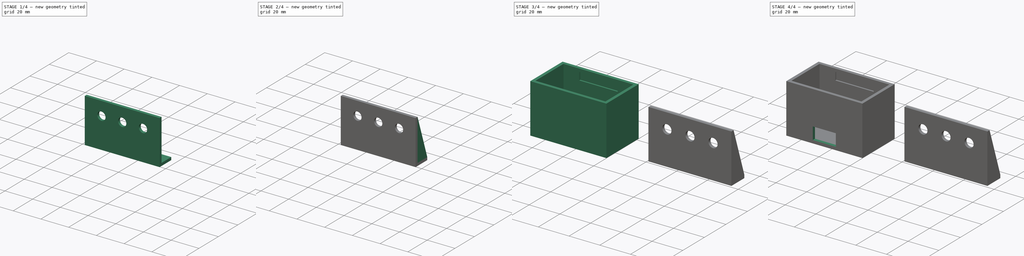
[diagram: build sequence overview — one tinted view per stage of 4, left to right]
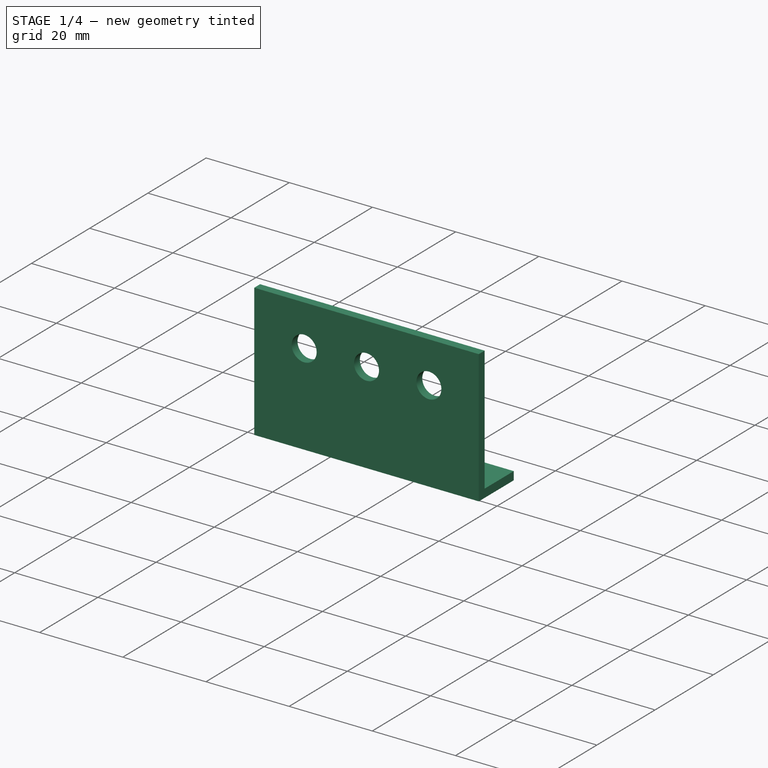
[diagram: stage 1 of 4 — iso view after this stage's code; geometry added in this stage tinted green]
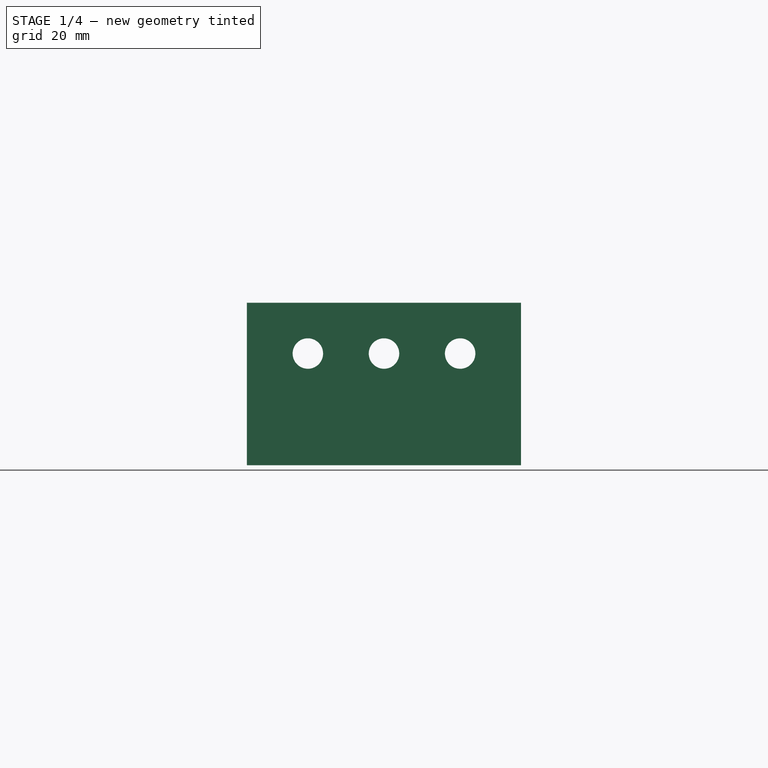
[diagram: stage 1 of 4 — front view after this stage's code; geometry added in this stage tinted green]
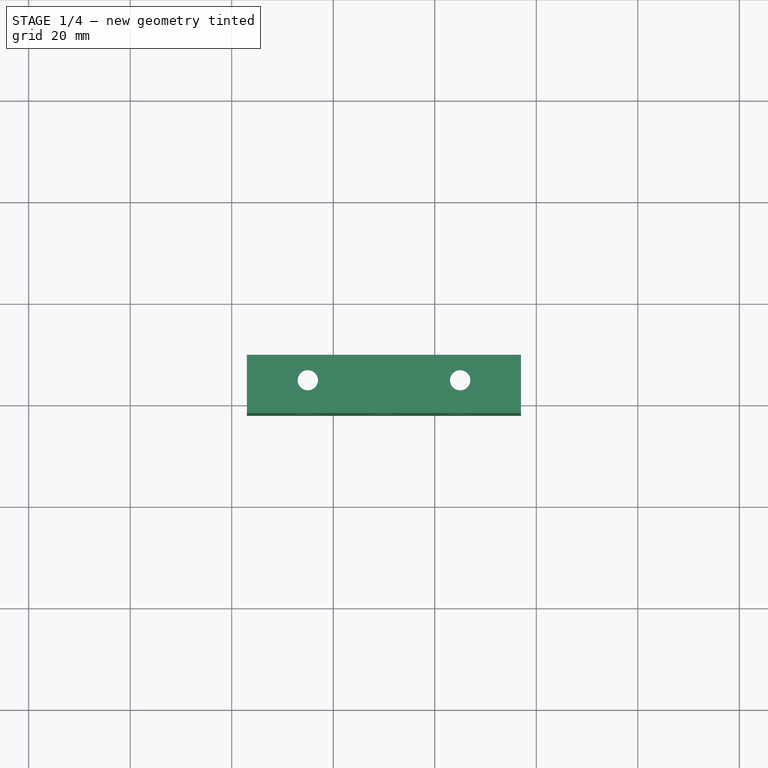
[diagram: stage 1 of 4 — top view after this stage's code; geometry added in this stage tinted green]
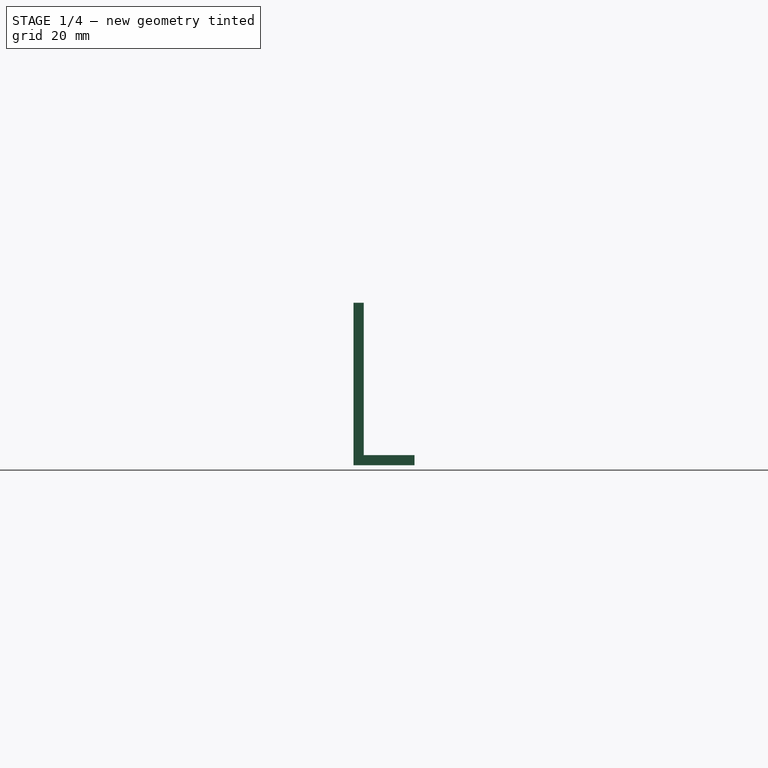
[diagram: stage 1 of 4 — right view after this stage's code; geometry added in this stage tinted green]
FCSTD DOCUMENT  (FreeCAD 0.19R24291 (Git))
Label: enclosure2
License: All rights reserved
LicenseURL: http://en.wikipedia.org/wiki/All_rights_reserved
objects: Sketcher::SketchObject×7, PartDesign::Pad×5, PartDesign::Pocket×2, PartDesign::Body×2, PartDesign::Mirrored×1, PartDesign::Chamfer×1
note: 26 computed .brp shape members not serialized (recipe doc carries the construction recipe); baked Part::Feature solids carry a one-line shape summary decoded from their .brp

FEATURE [PartDesign::Body] Body  label="Body: voltmeter enclosure"
  Group = -> [Sketch,Pad,Sketch001,Pad001,Sketch002,Pocket,Mirrored,Sketch003,Pocket001]
  Origin = -> Origin
  Tip = -> Pocket001
FEATURE [Sketcher::SketchObject] Sketch004
  FullyConstrained = true
  MapMode = 5
  Placement = pos=(0,0,0) rot=(1,0,0;1.5708rad)
  Support = -> [XZ_Plane001]
  sketch-geometry (13):
    g0: LineSegment StartX=43 StartY=30 StartZ=0 EndX=97 EndY=30 EndZ=0
    g1: LineSegment StartX=97 StartY=30 StartZ=0 EndX=97 EndY=0 EndZ=0
    g2: LineSegment StartX=97 StartY=0 StartZ=0 EndX=43 EndY=0 EndZ=0
    g3: LineSegment StartX=43 StartY=0 StartZ=0 EndX=43 EndY=30 EndZ=0
    g4: Circle CenterX=55 CenterY=20 CenterZ=0 NormalX=0 NormalY=0 NormalZ=1 AngleXU=0 Radius=3
    g5: Circle CenterX=70 CenterY=20 CenterZ=0 NormalX=0 NormalY=0 NormalZ=1 AngleXU=0 Radius=3
    g6: Circle CenterX=85 CenterY=20 CenterZ=0 NormalX=0 NormalY=0 NormalZ=1 AngleXU=0 Radius=3
    g7: LineSegment StartX=55 StartY=20 StartZ=0 EndX=70 EndY=20 EndZ=0
    g8: LineSegment StartX=70 StartY=20 StartZ=0 EndX=85 EndY=20 EndZ=0
    g9: LineSegment StartX=85 StartY=20 StartZ=0 EndX=97 EndY=20 EndZ=0
    g10: LineSegment StartX=55 StartY=20 StartZ=0 EndX=43 EndY=20 EndZ=0
    g11: LineSegment StartX=70 StartY=20 StartZ=0 EndX=70 EndY=0 EndZ=0
    g12: LineSegment StartX=70 StartY=20 StartZ=0 EndX=70 EndY=30 EndZ=0
  constraints (37):
    c: Coincident(g0,g1)
    c: Coincident(g1,g2)
    c: Coincident(g2,g3)
    c: Coincident(g3,g0)
    c: Horizontal(g0)
    c: Horizontal(g2)
    c: Vertical(g1)
    c: Vertical(g3)
    c: PointOnObject(g1,g-1)
    c: Equal(g6,g5)
    c: Equal(g5,g4)
    c: Coincident(g7,g4)
    c: Coincident(g7,g5)
    c: Horizontal(g7)
    c: Coincident(g8,g5)
    c: Coincident(g8,g6)
    c: Horizontal(g8)
    c: Coincident(g9,g6)
    c: PointOnObject(g9,g1)
    c: Horizontal(g9)
    c: Coincident(g10,g4)
    c: PointOnObject(g10,g3)
    c: Horizontal(g10)
    c: Distance(g7) = 15  'hole center distance'
    c: Equal(g7,g8)
    c: Distance(g10) = 12  'hole center to side edge distance'
    c: Equal(g10,g9)
    c: Coincident(g11,g5)
    c: PointOnObject(g11,g2)
    c: Vertical(g11)
    c: Coincident(g12,g5)
    c: PointOnObject(g12,g0)
    c: Vertical(g12)
    c: Distance(g11) = 20  'hole center to bottom distance'
    c: Distance(g12) = 10  'hole center to top distance'
    c: Diameter(g4) = 6  'hole diameter'
    c: Distance(g-1,g11) = 70
FEATURE [PartDesign::Pad] Pad002  label="Pad: side plate"
  Direction = (1,1,1)
  Length = 2
  Length2 = 100
  Placement = pos=(0,0,0) rot=(1,0,0;1.5708rad)
  Profile = -> Sketch004
  Type = 0
FEATURE [Sketcher::SketchObject] Sketch005
  ExternalGeometry = -> [Pad002]
  FullyConstrained = true
  MapMode = 5
  Placement = pos=(0,0,0) rot=(1,0,0;3.14159rad)
  Support = -> [Pad002]
  sketch-geometry (10):
    g0: LineSegment StartX=43 StartY=-10 StartZ=0 EndX=97 EndY=-10 EndZ=0
    g1: LineSegment StartX=43 StartY=2 StartZ=0 EndX=43 EndY=0 EndZ=0
    g2: LineSegment StartX=97 StartY=2 StartZ=0 EndX=97 EndY=0 EndZ=0
    g3: LineSegment StartX=43 StartY=0 StartZ=0 EndX=43 EndY=-10 EndZ=0
    g4: LineSegment StartX=97 StartY=0 StartZ=0 EndX=97 EndY=-10 EndZ=0
    g5: Circle CenterX=55 CenterY=-5 CenterZ=0 NormalX=0 NormalY=0 NormalZ=1 AngleXU=0 Radius=2
    g6: Circle CenterX=85 CenterY=-5 CenterZ=0 NormalX=0 NormalY=0 NormalZ=1 AngleXU=0 Radius=2
    g7: LineSegment StartX=55 StartY=-5 StartZ=0 EndX=70 EndY=-5 EndZ=0
    g8: LineSegment StartX=70 StartY=-5 StartZ=0 EndX=85 EndY=-5 EndZ=0
    g9: LineSegment StartX=43 StartY=2 StartZ=0 EndX=97 EndY=2 EndZ=0
  constraints (26):
    c: Horizontal(g0)
    c: Coincident(g1,g-3)
    c: PointOnObject(g1,g-1)
    c: Coincident(g2,g-3)
    c: PointOnObject(g2,g-1)
    c: Coincident(g3,g1)
    c: Coincident(g3,g0)
    c: Vertical(g3)
    c: Coincident(g4,g2)
    c: Coincident(g4,g0)
    c: Vertical(g4)
    c: Distance(g3) = 10  'base depth'
    c: Vertical(g2)
    c: Vertical(g1)
    c: Diameter(g5) = 4  'mounting hole diameter'
    c: Equal(g5,g6)
    c: Coincident(g7,g5)
    c: Horizontal(g7)
    c: Coincident(g8,g7)
    c: Coincident(g8,g6)
    c: Horizontal(g8)
    c: Equal(g7,g8)
    c: Symmetric(g1,g0,g7)
    c: Distance(g8) = 15  'half mounting hole distance'
    c: Coincident(g9,g1)
    c: Coincident(g9,g2)
FEATURE [PartDesign::Pad] Pad003  label="Pad: bottom plate"
  BaseFeature = -> Pad002
  Direction = (1,1,1)
  Length = 2
  Length2 = 100
  Placement = pos=(0,0,0) rot=(1,0,0;1.5708rad)
  Profile = -> Sketch005
  Type = 0
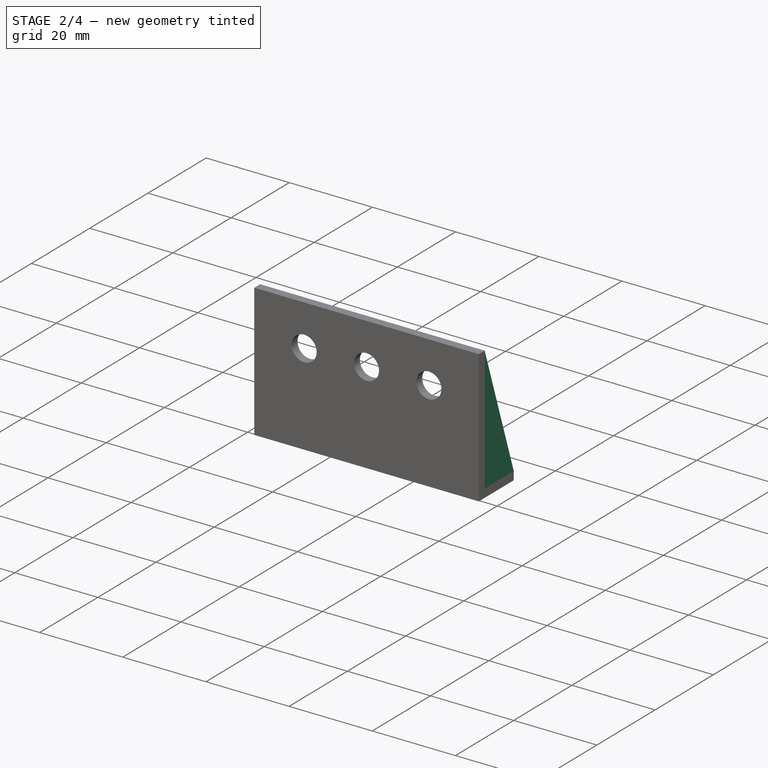
[diagram: stage 2 of 4 — iso view after this stage's code; geometry added in this stage tinted green]
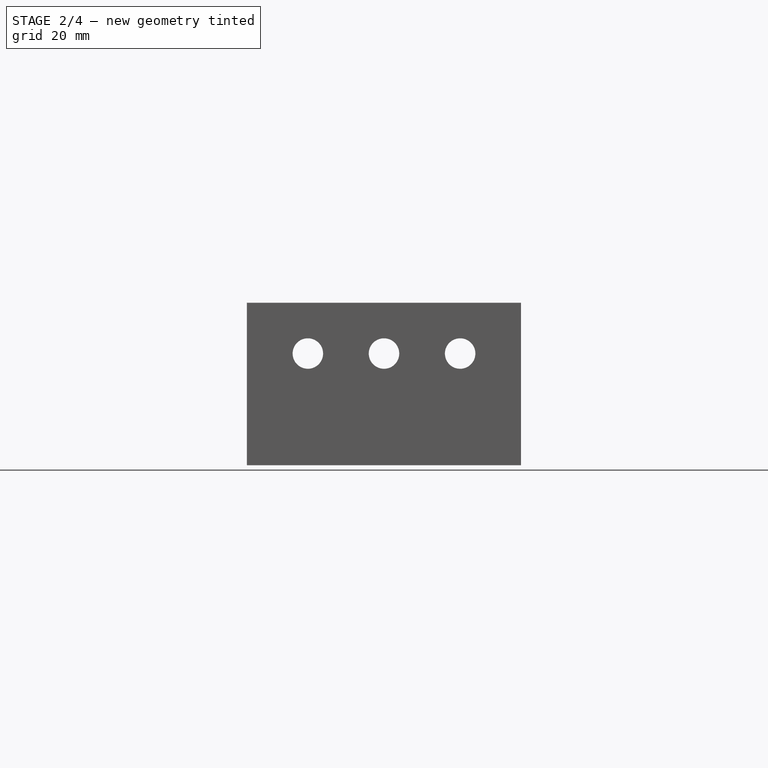
[diagram: stage 2 of 4 — front view after this stage's code; geometry added in this stage tinted green]
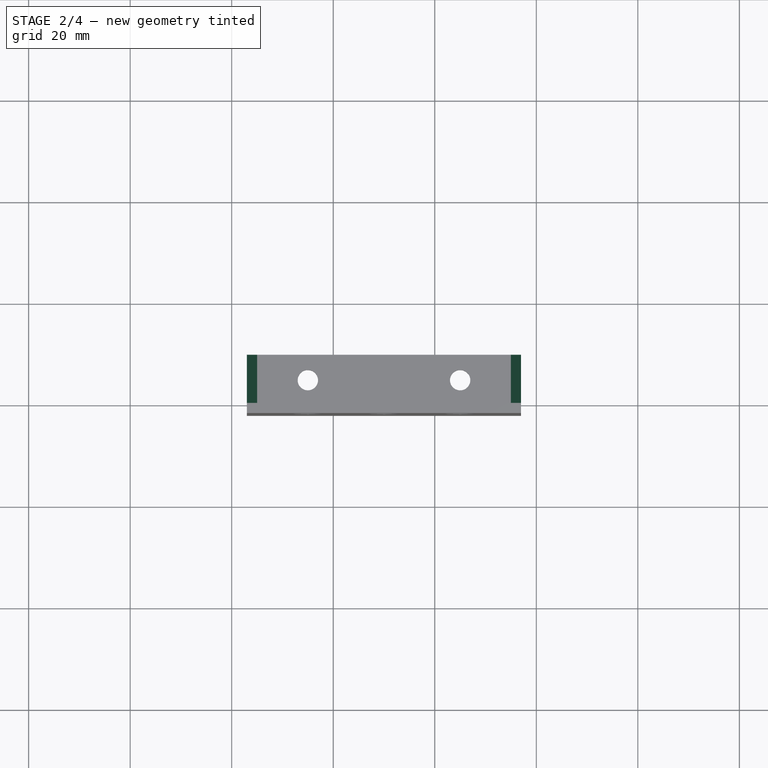
[diagram: stage 2 of 4 — top view after this stage's code; geometry added in this stage tinted green]
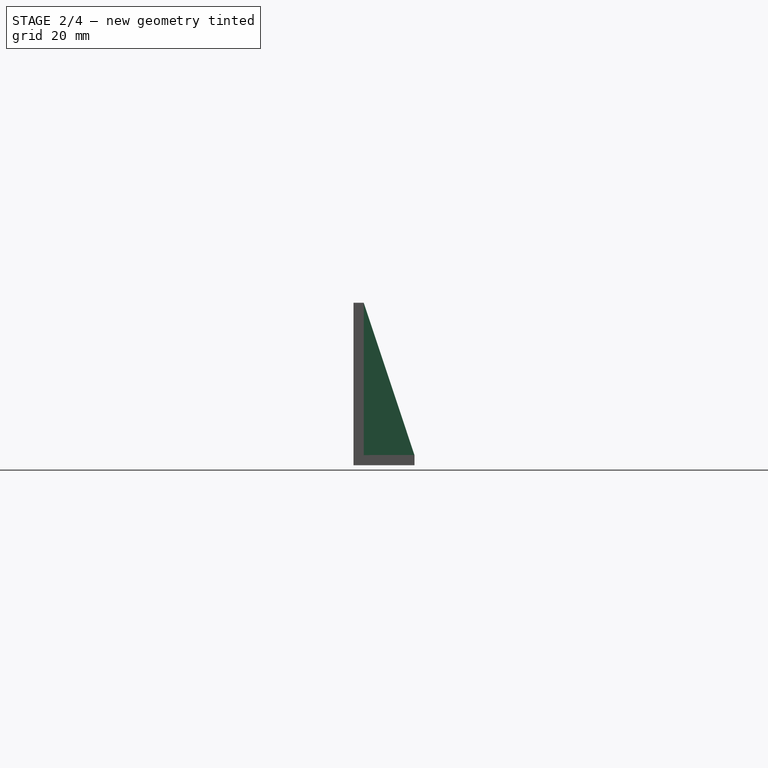
[diagram: stage 2 of 4 — right view after this stage's code; geometry added in this stage tinted green]
FEATURE [Sketcher::SketchObject] Sketch006
  ExternalGeometry = -> [Pad003]
  FullyConstrained = true
  MapMode = 5
  Placement = pos=(0,0,0) rot=(0,0,1;3.14159rad)
  Support = -> [Pad003]
  sketch-geometry (8):
    g0: LineSegment StartX=-97 StartY=0 StartZ=0 EndX=-95 EndY=0 EndZ=0
    g1: LineSegment StartX=-95 StartY=0 StartZ=0 EndX=-95 EndY=-10 EndZ=0
    g2: LineSegment StartX=-95 StartY=-10 StartZ=0 EndX=-97 EndY=-10 EndZ=0
    g3: LineSegment StartX=-97 StartY=-10 StartZ=0 EndX=-97 EndY=0 EndZ=0
    g4: LineSegment StartX=-43 StartY=0 StartZ=0 EndX=-45 EndY=0 EndZ=0
    g5: LineSegment StartX=-45 StartY=0 StartZ=0 EndX=-45 EndY=-10 EndZ=0
    g6: LineSegment StartX=-45 StartY=-10 StartZ=0 EndX=-43 EndY=-10 EndZ=0
    g7: LineSegment StartX=-43 StartY=-10 StartZ=0 EndX=-43 EndY=0 EndZ=0
  constraints (22):
    c: Coincident(g0,g1)
    c: Coincident(g1,g2)
    c: Coincident(g2,g3)
    c: Coincident(g3,g0)
    c: Horizontal(g0)
    c: Horizontal(g2)
    c: Vertical(g1)
    c: Vertical(g3)
    c: Coincident(g0,g-6)
    c: PointOnObject(g1,g-5)
    c: Coincident(g4,g5)
    c: Coincident(g5,g6)
    c: Coincident(g6,g7)
    c: Coincident(g7,g4)
    c: Horizontal(g4)
    c: Horizontal(g6)
    c: Vertical(g5)
    c: Vertical(g7)
    c: Coincident(g4,g-6)
    c: PointOnObject(g5,g-5)
    c: Distance(g2) = 2
    c: Equal(g2,g6)
FEATURE [PartDesign::Pad] Pad004  label="Pad: side supports"
  BaseFeature = -> Pad003
  Direction = (1,1,1)
  Length = 30
  Length2 = 100
  Placement = pos=(0,0,0) rot=(1,0,0;1.5708rad)
  Profile = -> Sketch006
  Type = 0
FEATURE [PartDesign::Chamfer] Chamfer
  Angle = 45
  Base = -> Pad004 [Edge23,Edge14]
  BaseFeature = -> Pad004
  ChamferType = 1
  FlipDirection = false
  Placement = pos=(0,0,0) rot=(1,0,0;1.5708rad)
  Size = 9.99
  Size2 = 29.99
  SupportTransform = false
FEATURE [PartDesign::Body] Body001  label="Body: switch holder"
  Group = -> [Sketch004,Pad002,Sketch005,Pad003,Sketch006,Pad004,Chamfer]
  Origin = -> Origin001
  Tip = -> Chamfer
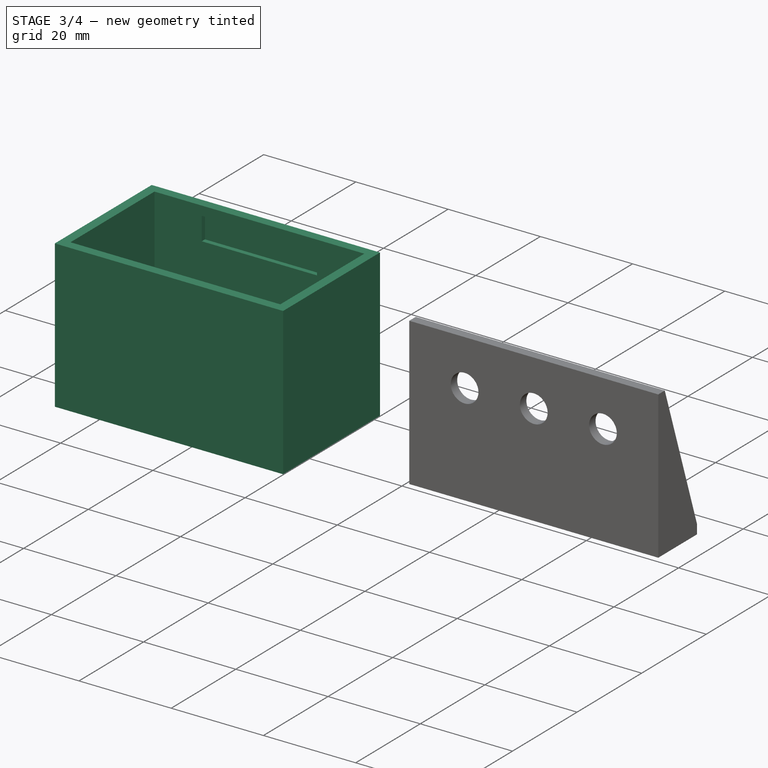
[diagram: stage 3 of 4 — iso view after this stage's code; geometry added in this stage tinted green]
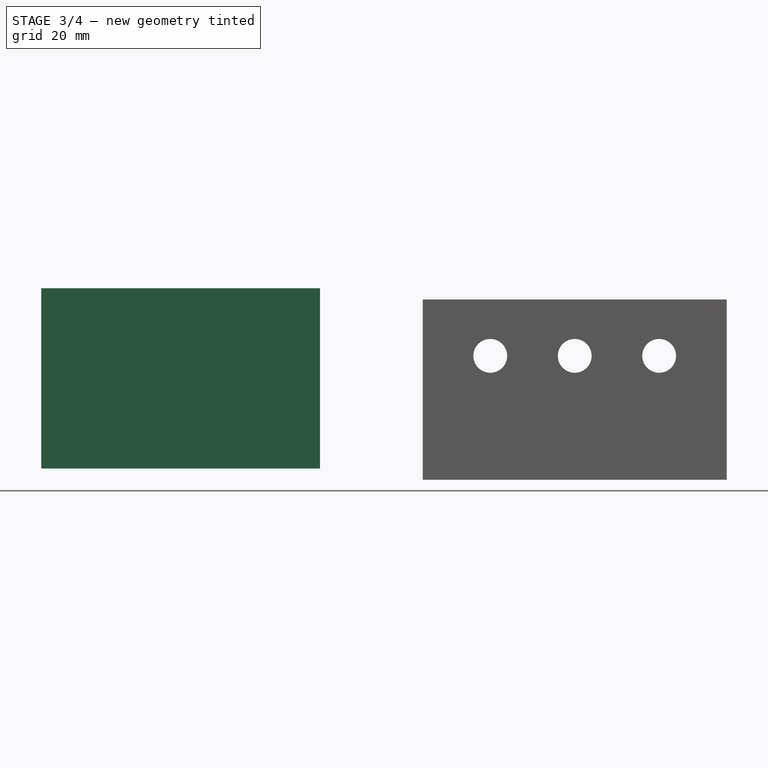
[diagram: stage 3 of 4 — front view after this stage's code; geometry added in this stage tinted green]
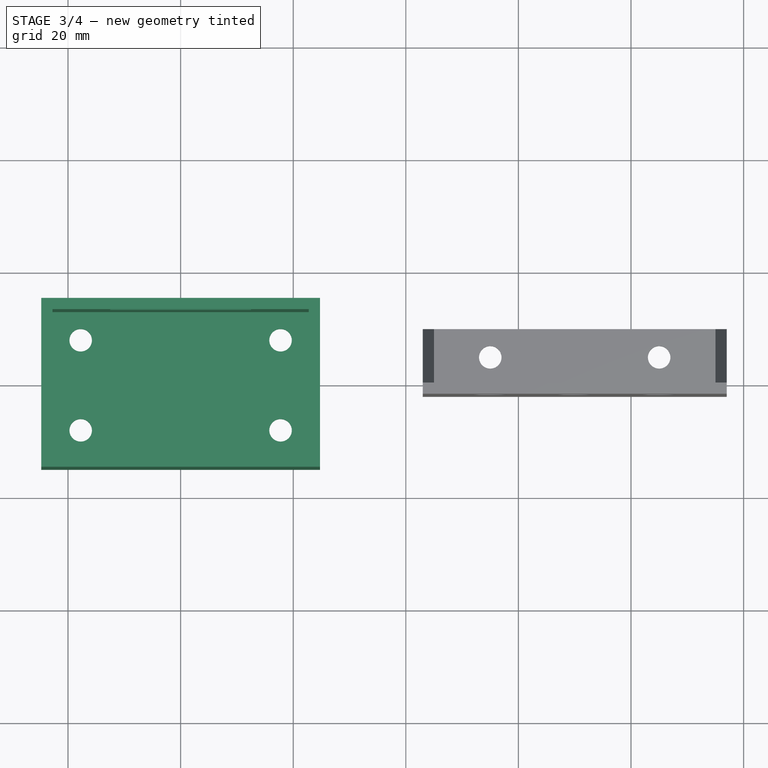
[diagram: stage 3 of 4 — top view after this stage's code; geometry added in this stage tinted green]
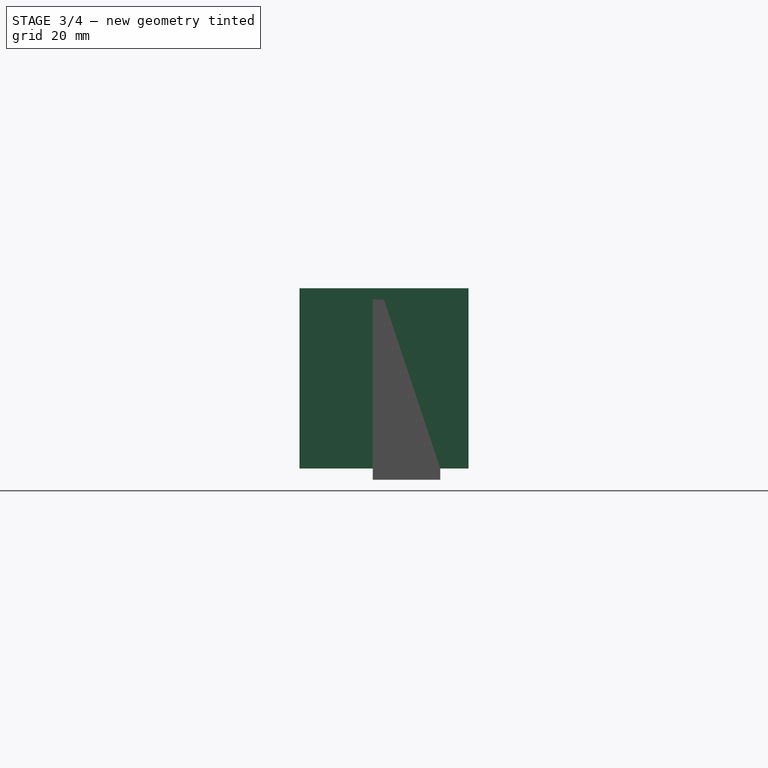
[diagram: stage 3 of 4 — right view after this stage's code; geometry added in this stage tinted green]
FEATURE [Sketcher::SketchObject] Sketch
  FullyConstrained = true
  MapMode = 5
  Support = -> [XY_Plane]
  sketch-geometry (16):
    g0: LineSegment StartX=-24.75 StartY=15 StartZ=0 EndX=24.75 EndY=15 EndZ=0
    g1: LineSegment StartX=24.75 StartY=15 StartZ=0 EndX=24.75 EndY=-15 EndZ=0
    g2: LineSegment StartX=24.75 StartY=-15 StartZ=0 EndX=-24.75 EndY=-15 EndZ=0
    g3: LineSegment StartX=-24.75 StartY=-15 StartZ=0 EndX=-24.75 EndY=15 EndZ=0
    g4: Circle CenterX=-17.75 CenterY=8 CenterZ=0 NormalX=0 NormalY=0 NormalZ=1 AngleXU=0 Radius=2
    g5: Circle CenterX=17.75 CenterY=8 CenterZ=0 NormalX=0 NormalY=0 NormalZ=1 AngleXU=0 Radius=2
    g6: Circle CenterX=-17.75 CenterY=-8 CenterZ=0 NormalX=0 NormalY=0 NormalZ=1 AngleXU=0 Radius=2
    g7: Circle CenterX=17.75 CenterY=-8 CenterZ=0 NormalX=0 NormalY=0 NormalZ=1 AngleXU=0 Radius=2
    g8: LineSegment StartX=-22.75 StartY=13 StartZ=0 EndX=22.75 EndY=13 EndZ=0
    g9: LineSegment StartX=22.75 StartY=13 StartZ=0 EndX=22.75 EndY=-13 EndZ=0
    g10: LineSegment StartX=22.75 StartY=-13 StartZ=0 EndX=-22.75 EndY=-13 EndZ=0
    g11: LineSegment StartX=-22.75 StartY=-13 StartZ=0 EndX=-22.75 EndY=13 EndZ=0
    g12: LineSegment StartX=22.75 StartY=13 StartZ=0 EndX=24.75 EndY=13 EndZ=0
    g13: LineSegment StartX=22.75 StartY=13 StartZ=0 EndX=22.75 EndY=15 EndZ=0
    g14: LineSegment StartX=-17.75 StartY=8 StartZ=0 EndX=-22.75 EndY=8 EndZ=0
    g15: LineSegment StartX=-17.75 StartY=8 StartZ=0 EndX=-17.75 EndY=13 EndZ=0
  constraints (43):
    c: Coincident(g0,g1)
    c: Coincident(g1,g2)
    c: Coincident(g2,g3)
    c: Coincident(g3,g0)
    c: Horizontal(g0)
    c: Horizontal(g2)
    c: Vertical(g1)
    c: Vertical(g3)
    c: Symmetric(g0,g1,g-1)
    c: Diameter(g4) = 4  'hole diameter'
    c: Equal(g4,g5)
    c: Equal(g4,g6)
    c: Equal(g4,g7)
    c: Coincident(g8,g9)
    c: Coincident(g9,g10)
    c: Coincident(g10,g11)
    c: Coincident(g11,g8)
    c: Horizontal(g8)
    c: Horizontal(g10)
    c: Vertical(g9)
    c: Vertical(g11)
    c: Symmetric(g8,g9,g-1)
    c: Coincident(g12,g8)
    c: PointOnObject(g12,g1)
    c: Horizontal(g12)
    c: Distance(g12) = 2  'wall thickness'
    c: Coincident(g13,g8)
    c: PointOnObject(g13,g0)
    c: Vertical(g13)
    c: Equal(g13,g12)
    c: Symmetric(g4,g7,g-1)
    c: Symmetric(g6,g5,g-1)
    c: Symmetric(g5,g7,g-1)
    c: Coincident(g14,g4)
    c: PointOnObject(g14,g11)
    c: Horizontal(g14)
    c: Coincident(g15,g4)
    c: PointOnObject(g15,g8)
    c: Vertical(g15)
    c: Distance(g14) = 5  'distance of holes from inside wall'
    c: Equal(g14,g15)
    c: Distance(g10) = 45.5  'inside width'
    c: Distance(g9) = 26  'inside height'
FEATURE [PartDesign::Pad] Pad  label="Pad: bottom plate with mounting holes"
  Direction = (1,1,1)
  Length = 2
  Length2 = 100
  Profile = -> Sketch
  Type = 0
FEATURE [Sketcher::SketchObject] Sketch001
  FullyConstrained = true
  MapMode = 5
  Placement = pos=(0,0,2) rot=(0,0,1;0rad)
  Support = -> [Pad]
  sketch-geometry (28):
    g0: LineSegment StartX=-24.75 StartY=15 StartZ=0 EndX=24.75 EndY=15 EndZ=0
    g1: LineSegment StartX=24.75 StartY=15 StartZ=0 EndX=24.75 EndY=-15 EndZ=0
    g2: LineSegment StartX=24.75 StartY=-15 StartZ=0 EndX=-24.75 EndY=-15 EndZ=0
    g3: LineSegment StartX=-24.75 StartY=-15 StartZ=0 EndX=-24.75 EndY=15 EndZ=0
    g4: Circle CenterX=-17.75 CenterY=8 CenterZ=0 NormalX=0 NormalY=0 NormalZ=1 AngleXU=0 Radius=1.5
    g5: Circle CenterX=17.75 CenterY=8 CenterZ=0 NormalX=0 NormalY=0 NormalZ=1 AngleXU=0 Radius=1.5
    g6: Circle CenterX=-17.75 CenterY=-8 CenterZ=0 NormalX=0 NormalY=0 NormalZ=1 AngleXU=0 Radius=1.5
    g7: Circle CenterX=17.75 CenterY=-8 CenterZ=0 NormalX=0 NormalY=0 NormalZ=1 AngleXU=0 Radius=1.5
    g8: LineSegment StartX=-22.75 StartY=13 StartZ=0 EndX=22.75 EndY=13 EndZ=0
    g9: LineSegment StartX=22.75 StartY=13 StartZ=0 EndX=22.75 EndY=-13 EndZ=0
    g10: LineSegment StartX=22.75 StartY=-13 StartZ=0 EndX=-22.75 EndY=-13 EndZ=0
    g11: LineSegment StartX=-22.75 StartY=-13 StartZ=0 EndX=-22.75 EndY=13 EndZ=0
    g12: LineSegment StartX=22.75 StartY=13 StartZ=0 EndX=24.75 EndY=13 EndZ=0
    g13: LineSegment StartX=22.75 StartY=13 StartZ=0 EndX=22.75 EndY=15 EndZ=0
    g14: LineSegment StartX=-17.75 StartY=8 StartZ=0 EndX=-22.75 EndY=8 EndZ=0
    g15: LineSegment StartX=-17.75 StartY=8 StartZ=0 EndX=-17.75 EndY=13 EndZ=0
    g16: LineSegment StartX=-24.75 StartY=15 StartZ=0 EndX=24.75 EndY=15 EndZ=0
    g17: LineSegment StartX=24.75 StartY=15 StartZ=0 EndX=24.75 EndY=-15 EndZ=0
    g18: LineSegment StartX=24.75 StartY=-15 StartZ=0 EndX=-24.75 EndY=-15 EndZ=0
    g19: LineSegment StartX=-24.75 StartY=-15 StartZ=0 EndX=-24.75 EndY=15 EndZ=0
    g20: LineSegment StartX=-24.75 StartY=15 StartZ=0 EndX=24.75 EndY=15 EndZ=0
    g21: LineSegment StartX=24.75 StartY=15 StartZ=0 EndX=24.75 EndY=-15 EndZ=0
    g22: LineSegment StartX=24.75 StartY=-15 StartZ=0 EndX=-24.75 EndY=-15 EndZ=0
    g23: LineSegment StartX=-24.75 StartY=-15 StartZ=0 EndX=-24.75 EndY=15 EndZ=0
    g24: LineSegment StartX=-22.75 StartY=13 StartZ=0 EndX=22.75 EndY=13 EndZ=0
    g25: LineSegment StartX=22.75 StartY=13 StartZ=0 EndX=22.75 EndY=-13 EndZ=0
    g26: LineSegment StartX=22.75 StartY=-13 StartZ=0 EndX=-22.75 EndY=-13 EndZ=0
    g27: LineSegment StartX=-22.75 StartY=-13 StartZ=0 EndX=-22.75 EndY=13 EndZ=0
  constraints (71):
    c: Coincident(g0,g1)
    c: Coincident(g1,g2)
    c: Coincident(g2,g3)
    c: Coincident(g3,g0)
    c: Horizontal(g0)
    c: Horizontal(g2)
    c: Vertical(g1)
    c: Symmetric(g0,g1,g-1)
    c: Diameter(g4) = 3  'hole diameter'
    c: Equal(g4,g5)
    c: Equal(g4,g6)
    c: Equal(g4,g7)
    c: Coincident(g8,g9)
    c: Coincident(g9,g10)
    c: Coincident(g10,g11)
    c: Coincident(g11,g8)
    c: Horizontal(g8)
    c: Horizontal(g10)
    c: Vertical(g9)
    c: Vertical(g11)
    c: Symmetric(g8,g9,g-1)
    c: Coincident(g12,g8)
    c: PointOnObject(g12,g1)
    c: Horizontal(g12)
    c: Distance(g12) = 2  'wall thickness'
    c: Coincident(g13,g8)
    c: PointOnObject(g13,g0)
    c: Vertical(g13)
    c: Equal(g13,g12)
    c: Symmetric(g4,g7,g-1)
    c: Symmetric(g6,g5,g-1)
    c: Symmetric(g5,g7,g-1)
    c: Coincident(g14,g4)
    c: PointOnObject(g14,g11)
    c: Horizontal(g14)
    c: Coincident(g15,g4)
    c: PointOnObject(g15,g8)
    c: Vertical(g15)
    c: Distance(g14) = 5  'distance of holes from inside wall'
    c: Equal(g14,g15)
    c: Distance(g10) = 45.5  'inside width'
    c: Distance(g9) = 26  'inside height'
    c: Coincident(g16,g17)
    c: Coincident(g17,g18)
    c: Coincident(g18,g19)
    c: Coincident(g19,g16)
    c: Horizontal(g16)
    c: Vertical(g17)
    c: Vertical(g19)
    c: Coincident(g16,g0)
    c: Coincident(g20,g21)
    c: Coincident(g21,g22)
    c: Coincident(g22,g23)
    c: Coincident(g23,g20)
    c: Horizontal(g20)
    c: Vertical(g21)
    c: Coincident(g20,g0)
    c: Coincident(g21,g1)
    c: Coincident(g24,g25)
    c: Coincident(g25,g26)
    c: Coincident(g26,g27)
    c: Coincident(g27,g24)
    c: Horizontal(g24)
    c: Horizontal(g26)
    c: Vertical(g25)
    c: Vertical(g27)
    c: Coincident(g24,g8)
    c: Coincident(g25,g9)
    c: Coincident(g22,g2)
    c: Coincident(g22,g18)
    c: Coincident(g1,g17)
FEATURE [PartDesign::Pad] Pad001  label="Pad: side walls"
  BaseFeature = -> Pad
  Direction = (1,1,1)
  Length = 30
  Length2 = 100
  Profile = -> Sketch001
  Type = 0
FEATURE [Sketcher::SketchObject] Sketch002
  ExternalGeometry = -> [Pad001]
  FullyConstrained = true
  MapMode = 5
  Placement = pos=(0,13,0) rot=(1,0,0;1.5708rad)
  Support = -> [Pad001]
  sketch-geometry (7):
    g0: LineSegment StartX=-12.5 StartY=30 StartZ=0 EndX=12.5 EndY=30 EndZ=0
    g1: LineSegment StartX=12.5 StartY=30 StartZ=0 EndX=12.5 EndY=25 EndZ=0
    g2: LineSegment StartX=12.5 StartY=25 StartZ=0 EndX=-12.5 EndY=25 EndZ=0
    g3: LineSegment StartX=-12.5 StartY=25 StartZ=0 EndX=-12.5 EndY=30 EndZ=0
    g4: LineSegment StartX=2.2e-15 StartY=30 StartZ=0 EndX=2.2e-15 EndY=32 EndZ=0
    g5: LineSegment StartX=-12.5 StartY=27.5 StartZ=0 EndX=-22.75 EndY=27.5 EndZ=0
    g6: LineSegment StartX=12.5 StartY=27.5 StartZ=0 EndX=22.75 EndY=27.5 EndZ=0
  constraints (21):
    c: Coincident(g0,g1)
    c: Coincident(g1,g2)
    c: Coincident(g2,g3)
    c: Coincident(g3,g0)
    c: Horizontal(g0)
    c: Vertical(g1)
    c: Vertical(g3)
    c: Horizontal(g2)
    c: PointOnObject(g4,g-4)
    c: Vertical(g4)
    c: PointOnObject(g5,g-5)
    c: Horizontal(g5)
    c: PointOnObject(g6,g-3)
    c: Horizontal(g6)
    c: Equal(g5,g6)
    c: Distance(g2) = 25  'recess width'
    c: Distance(g1) = 5  'recess height'
    c: Distance(g4) = 2  'distance between recess and top'
    c: Symmetric(g0,g2,g5)
    c: Symmetric(g0,g1,g6)
    c: Symmetric(g0,g0,g4)
FEATURE [PartDesign::Pocket] Pocket  label="Pocket: recess"
  BaseFeature = -> Pad001
  Length = 1
  Length2 = 100
  Profile = -> Sketch002
  Type = 0
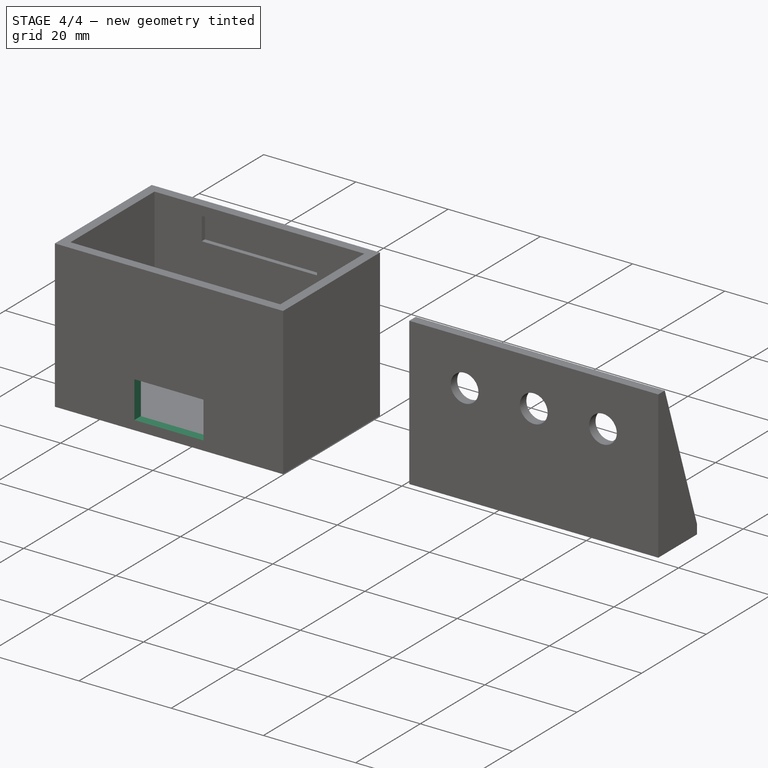
[diagram: stage 4 of 4 — iso view after this stage's code; geometry added in this stage tinted green]
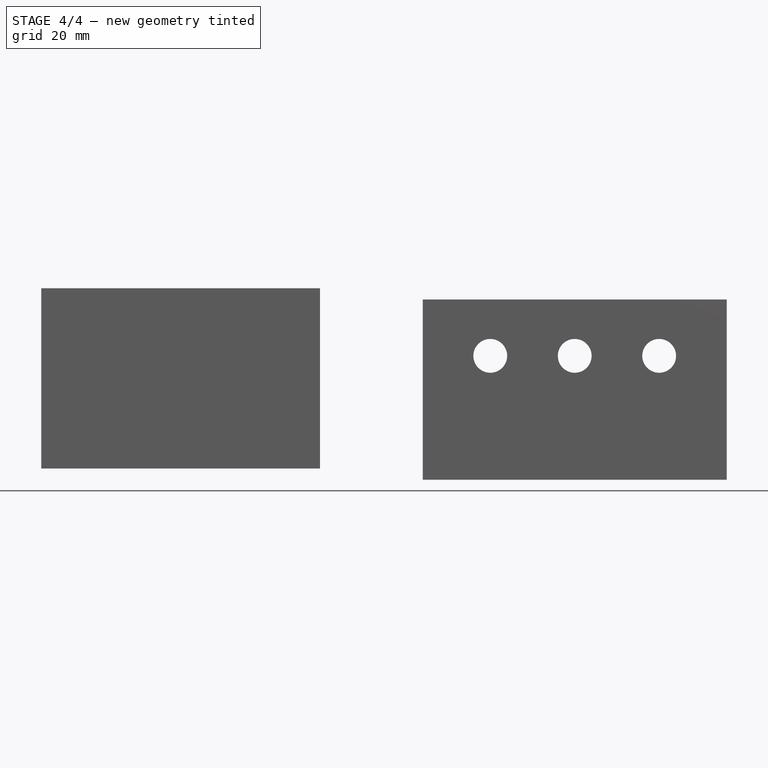
[diagram: stage 4 of 4 — front view after this stage's code; geometry added in this stage tinted green]
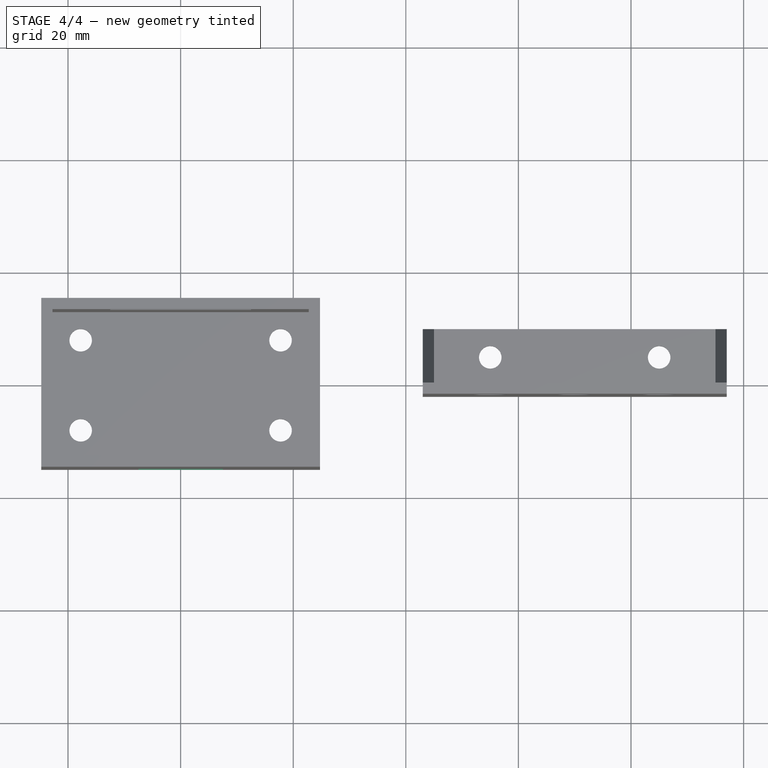
[diagram: stage 4 of 4 — top view after this stage's code; geometry added in this stage tinted green]
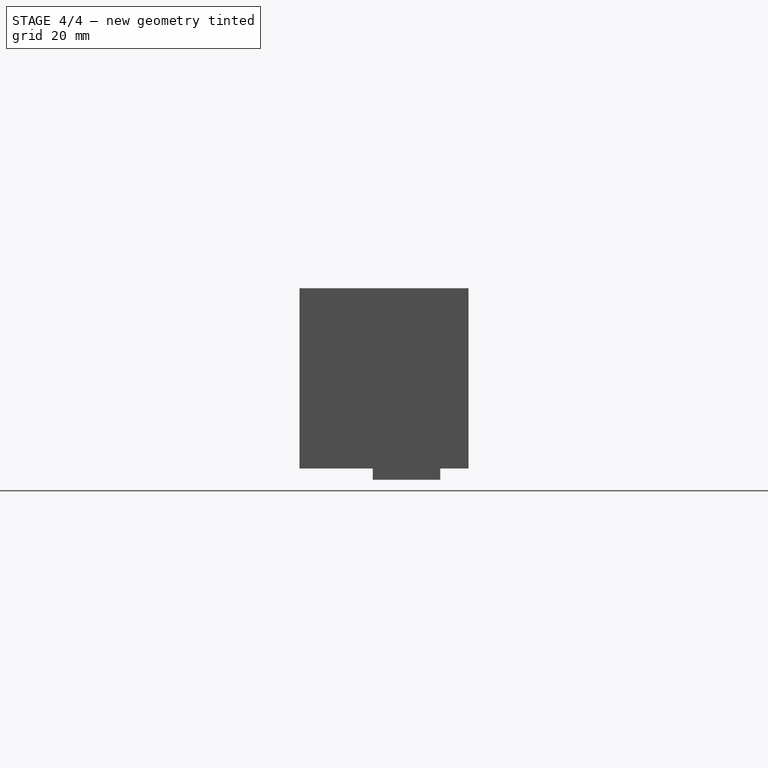
[diagram: stage 4 of 4 — right view after this stage's code; geometry added in this stage tinted green]
FEATURE [PartDesign::Mirrored] Mirrored
  BaseFeature = -> Pocket
  MirrorPlane = -> XZ_Plane
  Originals = -> [Pocket]
FEATURE [Sketcher::SketchObject] Sketch003
  ExternalGeometry = -> [Mirrored]
  FullyConstrained = true
  MapMode = 5
  Placement = pos=(0,-15,0) rot=(1,0,0;1.5708rad)
  Support = -> [Mirrored]
  sketch-geometry (4):
    g0: LineSegment StartX=-7.5 StartY=2 StartZ=0 EndX=7.5 EndY=2 EndZ=0
    g1: LineSegment StartX=7.5 StartY=2 StartZ=0 EndX=7.5 EndY=10 EndZ=0
    g2: LineSegment StartX=7.5 StartY=10 StartZ=0 EndX=-7.5 EndY=10 EndZ=0
    g3: LineSegment StartX=-7.5 StartY=10 StartZ=0 EndX=-7.5 EndY=2 EndZ=0
  constraints (11):
    c: Coincident(g0,g1)
    c: Coincident(g1,g2)
    c: Coincident(g2,g3)
    c: Coincident(g3,g0)
    c: Horizontal(g2)
    c: Vertical(g1)
    c: Vertical(g3)
    c: PointOnObject(g0,g-3)
    c: Distance(g1) = 8  'cable hole height'
    c: Distance(g2) = 15  'cable hole width'
    c: Symmetric(g0,g0,g-2)
FEATURE [PartDesign::Pocket] Pocket001  label="Pocket: cable hole"
  BaseFeature = -> Mirrored
  Length = 5
  Length2 = 100
  Profile = -> Sketch003
  Type = 2
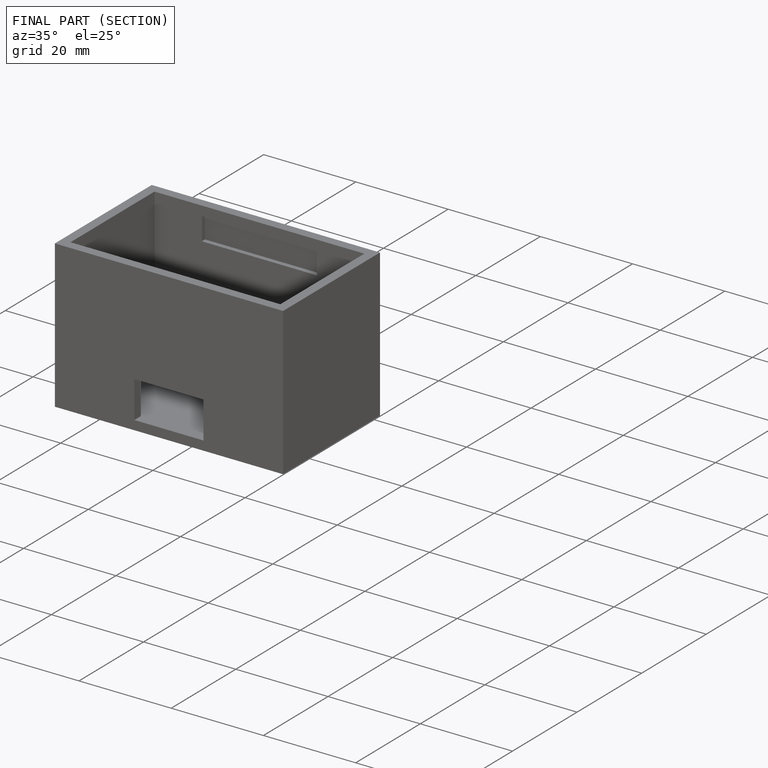
[diagram: finished part — half-section view (interior)]
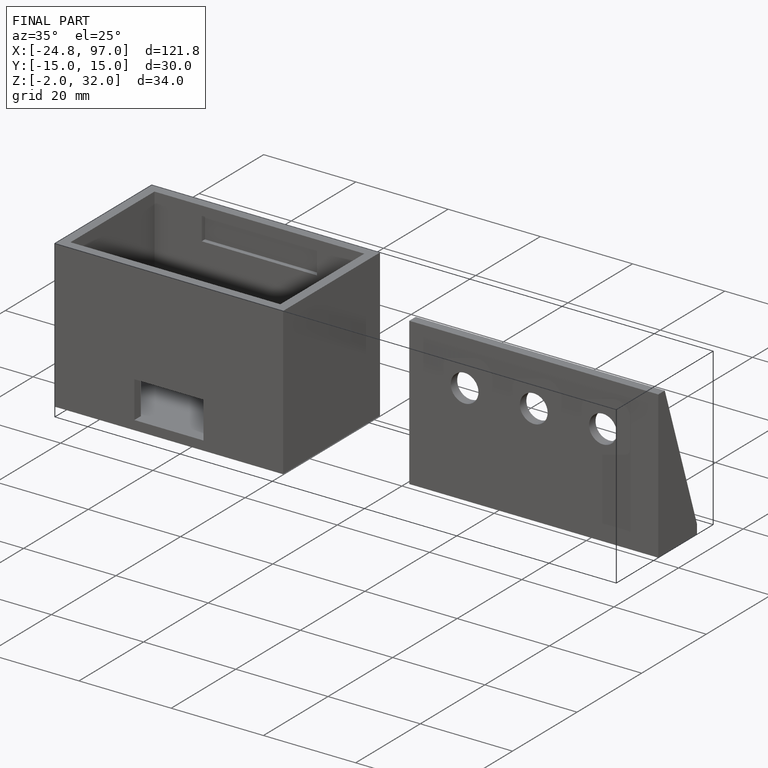
[diagram: finished part — iso view with bounding-box wireframe]
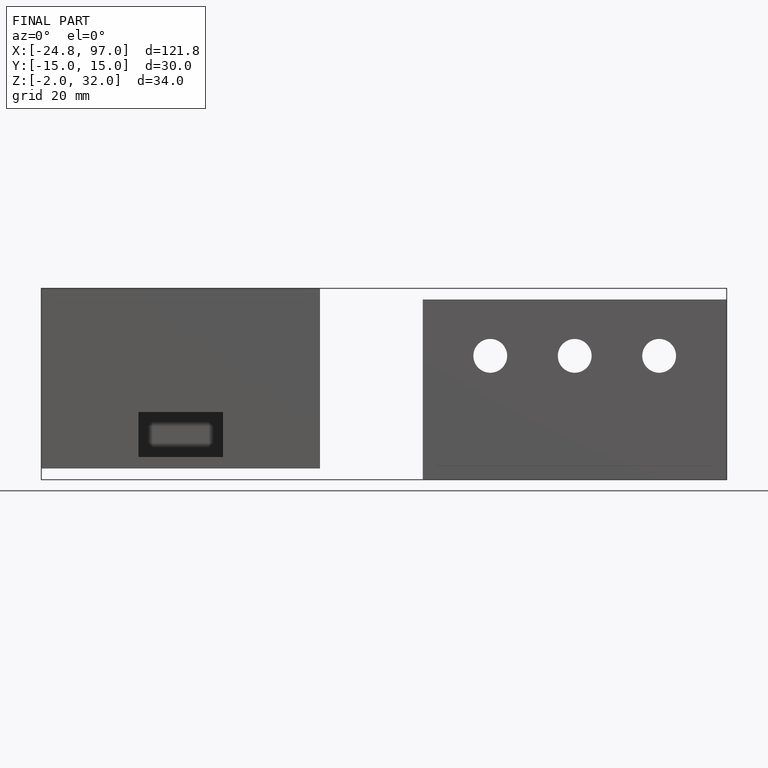
[diagram: finished part — front view with bounding-box wireframe]
